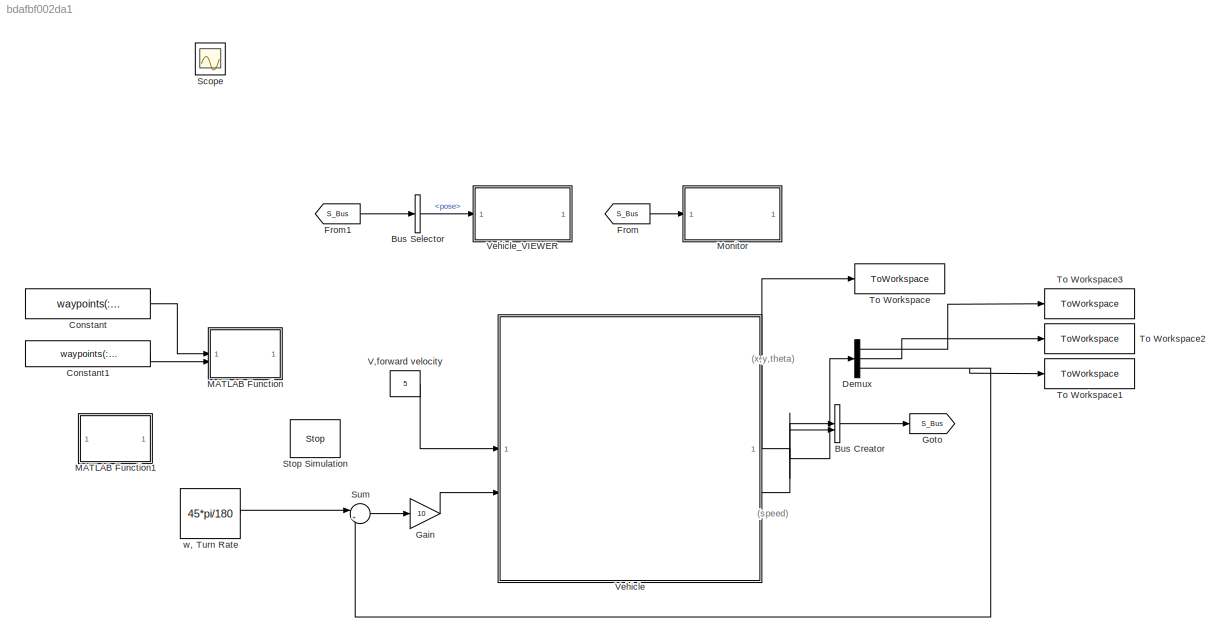
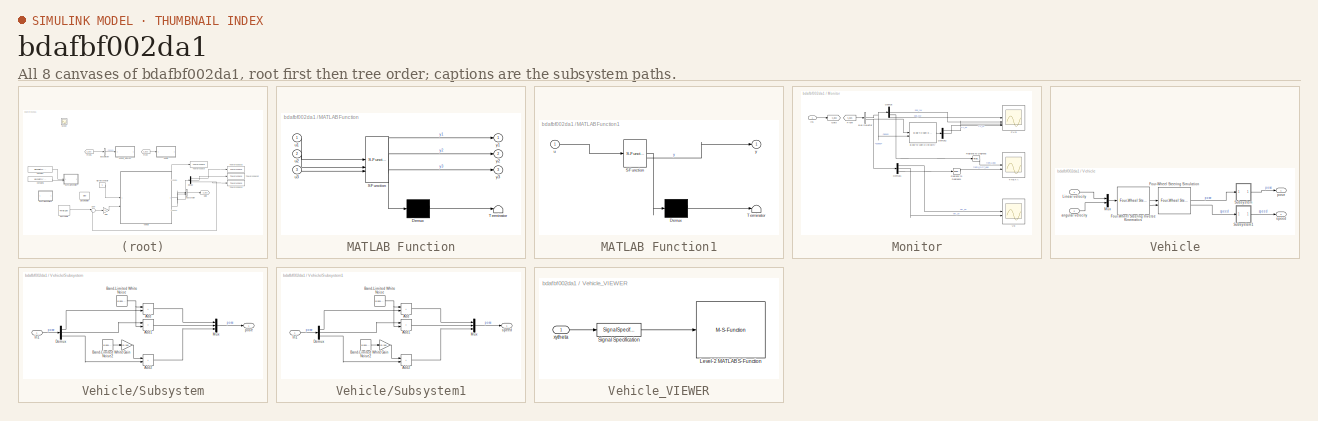
[diagram: thumbnail index - all 8 canvases of the model, root first then tree order]
MODEL slx_bdafbf002da1
KIND model
CONFIG AbsTol = auto
CONFIG EnableMultiTasking = on
CONFIG FixedStep = auto
CONFIG MaxStep = auto
CONFIG MinStep = auto
CONFIG RelTol = 1e-5
CONFIG SampleTimeConstraint = Unconstrained
CONFIG SolverName = ode45
CONFIG StartTime = 0.0
CONFIG StopTime = 20
WORKSPACE source: mxarray member
WORKSPACE waypoint_idx: Simulink.Parameter (value not decoded)
BLOCK [BusCreator] Bus Creator
  DisplayOption = bar
  InheritFromInputs = on
  Inputs = 2
BLOCK [BusSelector] Bus Selector
  OutputSignals = pose
BLOCK [Constant] Constant
  Commented = on
  Value = waypoints(:,1)
  VectorParams1D = off
BLOCK [Constant] Constant1
  Commented = on
  Value = waypoints(:,2)
BLOCK [Demux] Demux
  Outputs = 3
BLOCK [From] From
  GotoTag = S_Bus
BLOCK [From] From1
  GotoTag = S_Bus
BLOCK [Gain] Gain
  Gain = 10
BLOCK [Goto] Goto
  GotoTag = S_Bus
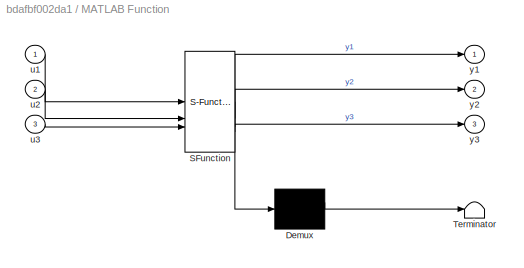
BLOCK [SubSystem] MATLAB Function
  ErrorFcn = Stateflow.Translate.translate
  LibrarySourceBlock = simulink/User-Defined\nFunctions/MATLAB Function
  PermitHierarchicalResolution = ExplicitOnly
  SFBlockType = MATLAB Function
  TreatAsAtomicUnit = on
BLOCK [Demux] MATLAB Function/ Demux 
  Outputs = 1
BLOCK [S-Function] MATLAB Function/ SFunction 
  EnableBusSupport = on
  FunctionName = sf_sfun
  PortCounts = [3 4]
  SFcnIsStateOwnerBlock = off
  SFunctionDeploymentMode = off
  Tag = Stateflow S-Function 2
BLOCK [Terminator] MATLAB Function/ Terminator 
BLOCK [Inport] MATLAB Function/u1
BLOCK [Inport] MATLAB Function/u2
  Port = 2
BLOCK [Inport] MATLAB Function/u3
  Port = 3
BLOCK [Outport] MATLAB Function/y1
BLOCK [Outport] MATLAB Function/y2
  Port = 2
BLOCK [Outport] MATLAB Function/y3
  Port = 3
BLOCK [SubSystem] MATLAB Function1
  ErrorFcn = Stateflow.Translate.translate
  LibrarySourceBlock = simulink/User-Defined\nFunctions/MATLAB Function
  PermitHierarchicalResolution = ExplicitOnly
  SFBlockType = MATLAB Function
  TreatAsAtomicUnit = on
BLOCK [Demux] MATLAB Function1/ Demux 
  Outputs = 1
BLOCK [S-Function] MATLAB Function1/ SFunction 
  EnableBusSupport = on
  FunctionName = sf_sfun
  PortCounts = [1 2]
  SFcnIsStateOwnerBlock = off
  SFunctionDeploymentMode = off
  Tag = Stateflow S-Function 1
BLOCK [Terminator] MATLAB Function1/ Terminator 
BLOCK [Inport] MATLAB Function1/u
BLOCK [Outport] MATLAB Function1/y
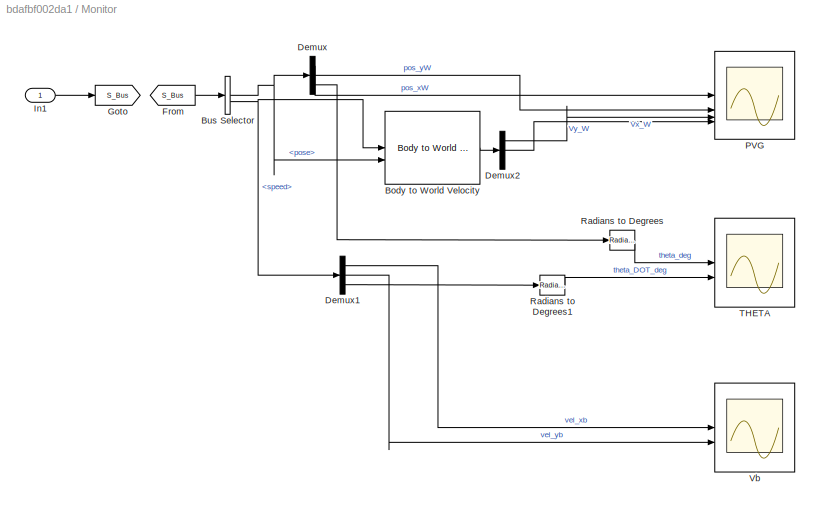
BLOCK [SubSystem] Monitor
  NameLocation = top
BLOCK [Reference] Monitor/Body to World Velocity  REF=mobileRoboticsLib/Utilities/Body to World Velocity
  SourceBlock = mobileRoboticsLib/Utilities/Body to World Velocity
  SourceProductName = Mobile Robotics Simulation Toolbox
  SourceType = Body to World Velocity
BLOCK [BusSelector] Monitor/Bus Selector
  OutputSignals = pose,speed
BLOCK [Demux] Monitor/Demux
  Outputs = 3
BLOCK [Demux] Monitor/Demux1
  Outputs = 3
BLOCK [Demux] Monitor/Demux2
  Outputs = 3
BLOCK [From] Monitor/From
  GotoTag = S_Bus
BLOCK [Goto] Monitor/Goto
  GotoTag = S_Bus
BLOCK [Inport] Monitor/In1
BLOCK [Scope] Monitor/PVG
  Floating = off
  NameLocation = top
  NumInputPorts = 4
  ScopeSpecificationString = Simulink.scopes.TimeScopeBlockCfg('CurrentConfiguration', extmgr.ConfigurationSet(extmgr.Configuration('Core','General UI',true),extmgr.Configuration('Core','Source UI',true),extmgr.Configuration('Sources','WiredSimulink',true,'DataLoggingVariableName','ScopeData1'),extmgr.Configuration('Visuals','Time Domain',true,'SerializedDisplays',{struct('MinYLimReal','-3.02358','MaxYLimReal','27.35477','YLa...<+3410ch>
BLOCK [Reference] Monitor/Radians to Degrees  REF=simulink_extras/Transformations/Radians
to Degrees
  SourceBlock = simulink_extras/Transformations/Radians\nto Degrees
  SourceType = RadiansToDegrees
BLOCK [Reference] Monitor/Radians to Degrees1  REF=simulink_extras/Transformations/Radians
to Degrees
  SourceBlock = simulink_extras/Transformations/Radians\nto Degrees
  SourceType = RadiansToDegrees
BLOCK [Scope] Monitor/THETA
  Floating = off
  NumInputPorts = 2
  ScopeSpecificationString = Simulink.scopes.TimeScopeBlockCfg('CurrentConfiguration', extmgr.ConfigurationSet(extmgr.Configuration('Core','General UI',true),extmgr.Configuration('Core','Source UI',true),extmgr.Configuration('Sources','WiredSimulink',true,'DataLoggingVariableName','ScopeData2'),extmgr.Configuration('Visuals','Time Domain',true,'SerializedDisplays',{struct('MinYLimReal','-8.72937','MaxYLimReal','60.06611','YLa...<+2717ch>
BLOCK [Scope] Monitor/Vb
  Floating = off
  NumInputPorts = 2
  ScopeSpecificationString = Simulink.scopes.TimeScopeBlockCfg('CurrentConfiguration', extmgr.ConfigurationSet(extmgr.Configuration('Core','General UI',true),extmgr.Configuration('Core','Source UI',true),extmgr.Configuration('Sources','WiredSimulink',true,'DataLoggingVariableName','ScopeData1'),extmgr.Configuration('Visuals','Time Domain',true,'SerializedDisplays',{struct('MinYLimReal','0.05577','MaxYLimReal','0.8929','YLabel...<+2702ch>
BLOCK [Scope] Scope
  Floating = off
  IOType = viewer
  NumInputPorts = 1
  ScopeSpecificationString = Simulink.scopes.TimeScopeBlockCfg('CurrentConfiguration', extmgr.ConfigurationSet(extmgr.Configuration('Core','General UI',true),extmgr.Configuration('Core','Source UI',true),extmgr.Configuration('Sources','WiredSimulink',true,'DataLoggingVariableName','ScopeData1'),extmgr.Configuration('Visuals','Time Domain',true,'SerializedDisplays',{struct('MinYLimReal','0.07','MaxYLimReal','0.09','YLabelReal'...<+1950ch>
BLOCK [Stop] Stop Simulation
  Commented = on
BLOCK [Sum] Sum
  Inputs = |+-
BLOCK [ToWorkspace] To Workspace
  FixptAsFi = on
  MaxDataPoints = inf
  SampleTime = -1
  SaveFormat = Timeseries
  VariableName = pose_out
BLOCK [ToWorkspace] To Workspace1
  FixptAsFi = on
  MaxDataPoints = inf
  SampleTime = -1
  SaveFormat = Timeseries
  VariableName = theta_out
BLOCK [ToWorkspace] To Workspace2
  FixptAsFi = on
  MaxDataPoints = inf
  SampleTime = -1
  SaveFormat = Timeseries
  VariableName = y_out
BLOCK [ToWorkspace] To Workspace3
  FixptAsFi = on
  MaxDataPoints = inf
  SampleTime = -1
  SaveFormat = Timeseries
  VariableName = x_out
BLOCK [Constant] V,forward velocity
  Value = 5
BLOCK [SubSystem] Vehicle
BLOCK [Reference] Vehicle/Four-Wheel Steering Inverse Kinematics  REF=mobileRoboticsLib/Kinematic Models/Four-Wheel Steering/Four-Wheel Steering
Inverse Kinematics
  SourceBlock = mobileRoboticsLib/Kinematic Models/Four-Wheel Steering/Four-Wheel Steering\nInverse Kinematics
  SourceProductName = Mobile Robotics Simulation Toolbox
  SourceType = Four-Wheel Steering Inverse Kinematics
BLOCK [Reference] Vehicle/Four-Wheel Steering Simulation  REF=mobileRoboticsLib/Kinematic Models/Four-Wheel Steering/Four-Wheel Steering Simulation
  SourceBlock = mobileRoboticsLib/Kinematic Models/Four-Wheel Steering/Four-Wheel Steering Simulation
  SourceProductName = Mobile Robotics Simulation Toolbox
  SourceType = Four-Wheel Steering Simulation
BLOCK [Inport] Vehicle/Linear velocity
BLOCK [Mux] Vehicle/Mux
  DisplayOption = bar
  Inputs = 2
BLOCK [SubSystem] Vehicle/Subsystem
BLOCK [Sum] Vehicle/Subsystem/Add
  IconShape = rectangular
BLOCK [Sum] Vehicle/Subsystem/Add1
  IconShape = rectangular
BLOCK [Sum] Vehicle/Subsystem/Add2
  IconShape = rectangular
BLOCK [Reference] Vehicle/Subsystem/Band-Limited White Noise  REF=simulink/Sources/Band-Limited
White Noise
  SourceBlock = simulink/Sources/Band-Limited\nWhite Noise
  SourceType = Band-Limited White Noise.
BLOCK [Reference] Vehicle/Subsystem/Band-Limited White Noise2  REF=simulink/Sources/Band-Limited
White Noise
  SourceBlock = simulink/Sources/Band-Limited\nWhite Noise
  SourceType = Band-Limited White Noise.
BLOCK [Demux] Vehicle/Subsystem/Demux
  Outputs = 3
BLOCK [Gain] Vehicle/Subsystem/Gain
  Gain = pi/180
BLOCK [Inport] Vehicle/Subsystem/In1
BLOCK [Mux] Vehicle/Subsystem/Mux
  DisplayOption = bar
  Inputs = 3
BLOCK [Outport] Vehicle/Subsystem/pose
BLOCK [SubSystem] Vehicle/Subsystem1
BLOCK [Sum] Vehicle/Subsystem1/Add
  IconShape = rectangular
BLOCK [Sum] Vehicle/Subsystem1/Add1
  IconShape = rectangular
BLOCK [Sum] Vehicle/Subsystem1/Add2
  IconShape = rectangular
BLOCK [Reference] Vehicle/Subsystem1/Band-Limited White Noise  REF=simulink/Sources/Band-Limited
White Noise
  SourceBlock = simulink/Sources/Band-Limited\nWhite Noise
  SourceType = Band-Limited White Noise.
BLOCK [Reference] Vehicle/Subsystem1/Band-Limited White Noise2  REF=simulink/Sources/Band-Limited
White Noise
  SourceBlock = simulink/Sources/Band-Limited\nWhite Noise
  SourceType = Band-Limited White Noise.
BLOCK [Demux] Vehicle/Subsystem1/Demux
  Outputs = 3
BLOCK [Gain] Vehicle/Subsystem1/Gain
  Gain = pi/180
BLOCK [Inport] Vehicle/Subsystem1/In1
BLOCK [Mux] Vehicle/Subsystem1/Mux
  DisplayOption = bar
  Inputs = 3
BLOCK [Outport] Vehicle/Subsystem1/speed
BLOCK [Inport] Vehicle/angular velocity
  Port = 2
BLOCK [Outport] Vehicle/pose
  VectorParamsAs1DForOutWhenUnconnected = off
BLOCK [Outport] Vehicle/speed
  Port = 2
BLOCK [SubSystem] Vehicle_VIEWER
  NameLocation = top
BLOCK [M-S-Function] Vehicle_VIEWER/Level-2 MATLAB S-Function
  FunctionName = bh_ddr_animate_sfun
  Parameters = Ts, wp_mat, veh_ID_num, veh_init_xytheta
BLOCK [SignalSpecification] Vehicle_VIEWER/Signal Specification
  Dimensions = 3
BLOCK [Inport] Vehicle_VIEWER/xytheta
BLOCK [Constant] w, Turn Rate
  Value = 45*pi/180
ANNOTATION (root): (speed)
ANNOTATION (root): (x,y,theta)
LINE Bus Creator:1 -> Goto:1
LINE Bus Selector:1 -> Vehicle_VIEWER:1
LINE Constant1:1 -> MATLAB Function:2
LINE Constant:1 -> MATLAB Function:1
LINE Demux:1 -> To Workspace3:1
LINE Demux:2 -> To Workspace2:1
NET Demux:3 -> Sum:2, To Workspace1:1
LINE From1:1 -> Bus Selector:1
LINE From:1 -> Monitor:1
LINE Gain:1 -> Vehicle:2
LINE Monitor/Body to World Velocity:1 -> Monitor/Demux2:1
NET Monitor/Bus Selector:1 -> Monitor/Body to World Velocity:2, Monitor/Demux:1
NET Monitor/Bus Selector:2 -> Monitor/Body to World Velocity:1, Monitor/Demux1:1
LINE Monitor/Demux1:1 -> Monitor/Vb:1
LINE Monitor/Demux1:2 -> Monitor/Vb:2
LINE Monitor/Demux1:3 -> Monitor/Radians to Degrees1:1
LINE Monitor/Demux2:1 -> Monitor/PVG:3
LINE Monitor/Demux2:2 -> Monitor/PVG:4
LINE Monitor/Demux:1 -> Monitor/PVG:1
LINE Monitor/Demux:2 -> Monitor/PVG:2
LINE Monitor/Demux:3 -> Monitor/Radians to Degrees:1
LINE Monitor/From:1 -> Monitor/Bus Selector:1
LINE Monitor/In1:1 -> Monitor/Goto:1
LINE Monitor/Radians to Degrees1:1 -> Monitor/THETA:2
LINE Monitor/Radians to Degrees:1 -> Monitor/THETA:1
LINE Sum:1 -> Gain:1
LINE V,forward velocity:1 -> Vehicle:1
LINE Vehicle/Four-Wheel Steering Inverse Kinematics:1 -> Vehicle/Four-Wheel Steering Simulation:1
LINE Vehicle/Four-Wheel Steering Inverse Kinematics:2 -> Vehicle/Four-Wheel Steering Simulation:2
LINE Vehicle/Four-Wheel Steering Simulation:1 -> Vehicle/Subsystem:1
LINE Vehicle/Four-Wheel Steering Simulation:2 -> Vehicle/Subsystem1:1
LINE Vehicle/Linear velocity:1 -> Vehicle/Mux:1
LINE Vehicle/Mux:1 -> Vehicle/Four-Wheel Steering Inverse Kinematics:1
LINE Vehicle/Subsystem/Add1:1 -> Vehicle/Subsystem/Mux:2
LINE Vehicle/Subsystem/Add2:1 -> Vehicle/Subsystem/Mux:3
LINE Vehicle/Subsystem/Add:1 -> Vehicle/Subsystem/Mux:1
LINE Vehicle/Subsystem/Band-Limited White Noise2:1 -> Vehicle/Subsystem/Gain:1
NET Vehicle/Subsystem/Band-Limited White Noise:1 -> Vehicle/Subsystem/Add1:2, Vehicle/Subsystem/Add:1
LINE Vehicle/Subsystem/Demux:1 -> Vehicle/Subsystem/Add:2
LINE Vehicle/Subsystem/Demux:2 -> Vehicle/Subsystem/Add1:1
LINE Vehicle/Subsystem/Demux:3 -> Vehicle/Subsystem/Add2:2
LINE Vehicle/Subsystem/Gain:1 -> Vehicle/Subsystem/Add2:1
LINE Vehicle/Subsystem/In1:1 -> Vehicle/Subsystem/Demux:1
LINE Vehicle/Subsystem/Mux:1 -> Vehicle/Subsystem/pose:1
LINE Vehicle/Subsystem1/Add1:1 -> Vehicle/Subsystem1/Mux:2
LINE Vehicle/Subsystem1/Add2:1 -> Vehicle/Subsystem1/Mux:3
LINE Vehicle/Subsystem1/Add:1 -> Vehicle/Subsystem1/Mux:1
LINE Vehicle/Subsystem1/Band-Limited White Noise2:1 -> Vehicle/Subsystem1/Gain:1
NET Vehicle/Subsystem1/Band-Limited White Noise:1 -> Vehicle/Subsystem1/Add1:2, Vehicle/Subsystem1/Add:1
LINE Vehicle/Subsystem1/Demux:1 -> Vehicle/Subsystem1/Add:2
LINE Vehicle/Subsystem1/Demux:2 -> Vehicle/Subsystem1/Add1:1
LINE Vehicle/Subsystem1/Demux:3 -> Vehicle/Subsystem1/Add2:2
LINE Vehicle/Subsystem1/Gain:1 -> Vehicle/Subsystem1/Add2:1
LINE Vehicle/Subsystem1/In1:1 -> Vehicle/Subsystem1/Demux:1
LINE Vehicle/Subsystem1/Mux:1 -> Vehicle/Subsystem1/speed:1
LINE Vehicle/Subsystem1:1 -> Vehicle/speed:1
LINE Vehicle/Subsystem:1 -> Vehicle/pose:1
LINE Vehicle/angular velocity:1 -> Vehicle/Mux:2
NET Vehicle:1 -> Bus Creator:1, Demux:1, To Workspace:1
LINE Vehicle:2 -> Bus Creator:2
LINE Vehicle_VIEWER/Signal Specification:1 -> Vehicle_VIEWER/Level-2 MATLAB S-Function:1
LINE Vehicle_VIEWER/xytheta:1 -> Vehicle_VIEWER/Signal Specification:1
LINE w, Turn Rate:1 -> Sum:1
note: NET lines group one-source signal fan-out (src -> all destinations, sorted); 1:1 wires keep LINE
CHART MATLAB Function1 states=1 transitions=1
  STATE_LABEL 'eML_blk_kernel()'
  STATE_LABEL 'SCRIPT:\nfunction y = fcn(u)\n\ny = u;\n'
CHART MATLAB Function states=1 transitions=1
  STATE_LABEL 'eML_blk_kernel()'
  STATE_LABEL 'SCRIPT:\nfunction [y1, y2, y3] = fcn(u1, u2, u3)\n\n    persistent waypoint_idx;\n    persistent firstentry;\n    persistent OBJ;\n    \n    % \n    % if isempty(firstentry)\n    %     firstentry = 0;\n    % end\n    if isempty(waypoint_idx)\n        waypoint_idx.x = randi([-500,500], 10, 1);\n        waypoint_idx.y = randi([-500,500], 10, 1);\n    \n    end\n    % \n    % if firstentry == 0 \n    %     waypoint_id...<+528ch>'
CHART  states=0 transitions=0
CHART  states=0 transitions=0
